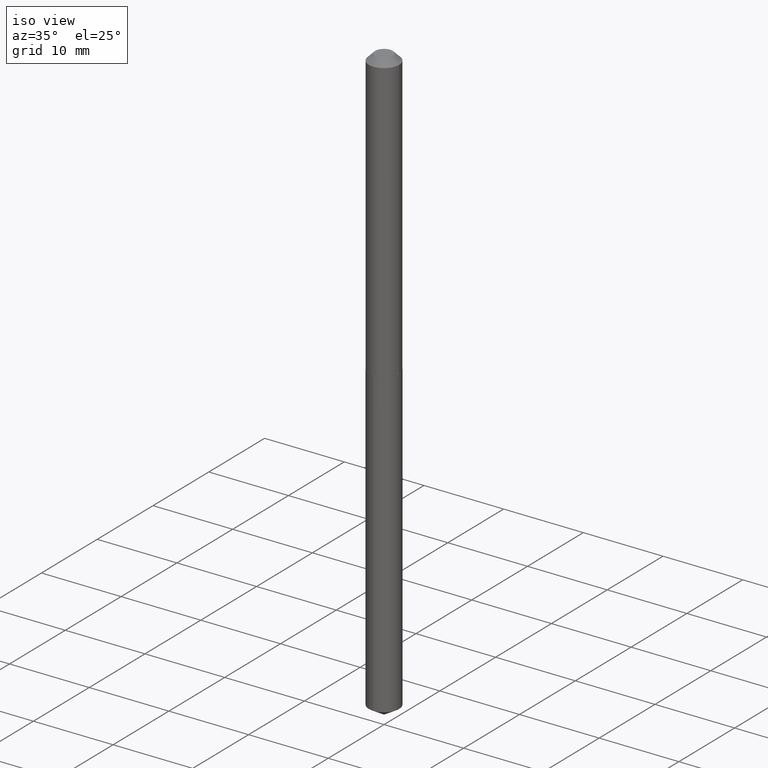
[diagram: clean part render]
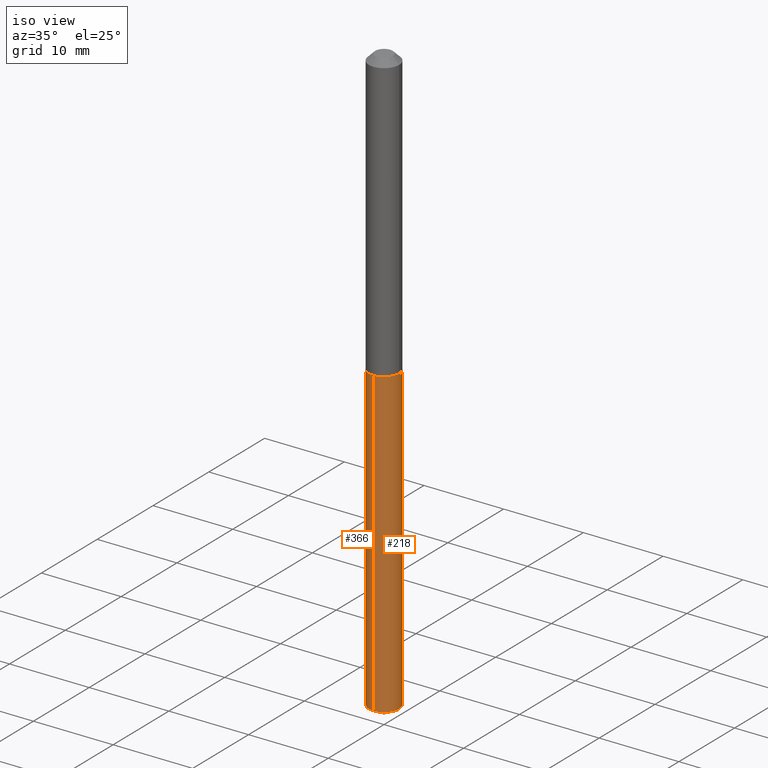
[diagram: same view with one multi-face feature highlighted, each face labeled with its STEP entity id]
A machine part, iso view. The highlighted faces form ONE feature: a constant-radius fillet chain: 2 tangent blend faces with common blend radius 1.8999 mm. The faces share edges in the B-rep.
Their STEP definitions:
[1] entity #218 (Cylinder):
#44 = ORIENTED_EDGE ( 'NONE', *, *, #364, .T. ) ;
#57 = DIRECTION ( 'NONE',  ( -6.982962677686265922E-15, -1.000000000000000000, 3.652203200085913145E-15 ) ) ;
#58 = EDGE_CURVE ( 'NONE', #380, #140, #114, .T. ) ;
#68 = VERTEX_POINT ( 'NONE', #264 ) ;
#80 = DIRECTION ( 'NONE',  ( -2.445501550165769556E-29, 3.491434447599207546E-15, 1.000000000000000000 ) ) ;
#86 = CYLINDRICAL_SURFACE ( 'NONE', #361, 0.07479999999999999150 ) ;
#92 = DIRECTION ( 'NONE',  ( -6.982962677686265922E-15, -1.000000000000000000, 0.000000000000000000 ) ) ;
#103 = AXIS2_PLACEMENT_3D ( 'NONE', #216, #178, #92 ) ;
#114 = LINE ( 'NONE', #202, #144 ) ;
#115 = CARTESIAN_POINT ( 'NONE',  ( -5.223256082908982878E-16, -0.07480000000000491811, -1.409499999999999309 ) ) ;
#132 = EDGE_CURVE ( 'NONE', #162, #140, #352, .T. ) ;
#136 = VECTOR ( 'NONE', #269, 39.37007874015748143 ) ;
#140 = VERTEX_POINT ( 'NONE', #204 ) ;
#144 = VECTOR ( 'NONE', #262, 39.37007874015748143 ) ;
#162 = VERTEX_POINT ( 'NONE', #115 ) ;
#175 = CARTESIAN_POINT ( 'NONE',  ( 3.446888282317949307E-29, -4.921242947099412620E-15, -1.409499999999999531 ) ) ;
#177 = EDGE_CURVE ( 'NONE', #68, #162, #245, .T. ) ;
#178 = DIRECTION ( 'NONE',  ( -2.445501550165769556E-29, 3.491434447599207546E-15, 1.000000000000000000 ) ) ;
#182 = DIRECTION ( 'NONE',  ( -2.445501550165769556E-29, 3.491434447599207546E-15, 1.000000000000000000 ) ) ;
#188 = CARTESIAN_POINT ( 'NONE',  ( 5.314859663486257775E-16, 0.07479999999998983296, -2.907855625696737611 ) ) ;
#197 = EDGE_LOOP ( 'NONE', ( #44, #371, #256, #360 ) ) ;
#202 = CARTESIAN_POINT ( 'NONE',  ( 5.314859663485892927E-16, 0.07479999999999507876, -1.409499999999999753 ) ) ;
#204 = CARTESIAN_POINT ( 'NONE',  ( 5.314859663486262705E-16, 0.07479999999999509264, -1.409499999999999753 ) ) ;
#216 = CARTESIAN_POINT ( 'NONE',  ( 7.111119287658923798E-29, -1.015265339341106768E-14, -2.907855625696737611 ) ) ;
#218 = ADVANCED_FACE ( 'NONE', ( #302 ), #86, .T. ) ;
#242 = CARTESIAN_POINT ( 'NONE',  ( -5.223256082908981892E-16, -0.07480000000000491811, -1.409499999999999309 ) ) ;
#245 = LINE ( 'NONE', #242, #136 ) ;
#256 = ORIENTED_EDGE ( 'NONE', *, *, #132, .F. ) ;
#262 = DIRECTION ( 'NONE',  ( -2.445501550165769556E-29, 3.491434447599207546E-15, 1.000000000000000000 ) ) ;
#264 = CARTESIAN_POINT ( 'NONE',  ( -5.223256082908615071E-16, -0.07480000000001012228, -2.907855625696737611 ) ) ;
#265 = AXIS2_PLACEMENT_3D ( 'NONE', #175, #80, #57 ) ;
#267 = DIRECTION ( 'NONE',  ( -6.982962677686265922E-15, -1.000000000000000000, 3.652203200085913934E-15 ) ) ;
#269 = DIRECTION ( 'NONE',  ( -2.445501550165769556E-29, 3.491434447599207546E-15, 1.000000000000000000 ) ) ;
#279 = CIRCLE ( 'NONE', #103, 0.07479999999999999150 ) ;
#302 = FACE_OUTER_BOUND ( 'NONE', #197, .T. ) ;
#328 = CARTESIAN_POINT ( 'NONE',  ( 3.446888282317949307E-29, -4.921242947099412620E-15, -1.409499999999999531 ) ) ;
#352 = CIRCLE ( 'NONE', #265, 0.07480000000000000537 ) ;
#360 = ORIENTED_EDGE ( 'NONE', *, *, #177, .F. ) ;
#361 = AXIS2_PLACEMENT_3D ( 'NONE', #328, #182, #267 ) ;
#364 = EDGE_CURVE ( 'NONE', #68, #380, #279, .T. ) ;
#371 = ORIENTED_EDGE ( 'NONE', *, *, #58, .T. ) ;
#380 = VERTEX_POINT ( 'NONE', #188 ) ;
[2] entity #366 (Cylinder):
#3 = DIRECTION ( 'NONE',  ( -2.445501550165769556E-29, 3.491434447599207546E-15, 1.000000000000000000 ) ) ;
#38 = DIRECTION ( 'NONE',  ( -2.445501550165769556E-29, 3.491434447599207546E-15, 1.000000000000000000 ) ) ;
#43 = DIRECTION ( 'NONE',  ( -6.982962677686265922E-15, -1.000000000000000000, 3.652203200085913934E-15 ) ) ;
#58 = EDGE_CURVE ( 'NONE', #380, #140, #114, .T. ) ;
#64 = CYLINDRICAL_SURFACE ( 'NONE', #217, 0.07479999999999999150 ) ;
#68 = VERTEX_POINT ( 'NONE', #264 ) ;
#104 = ORIENTED_EDGE ( 'NONE', *, *, #58, .F. ) ;
#114 = LINE ( 'NONE', #202, #144 ) ;
#115 = CARTESIAN_POINT ( 'NONE',  ( -5.223256082908982878E-16, -0.07480000000000491811, -1.409499999999999309 ) ) ;
#136 = VECTOR ( 'NONE', #269, 39.37007874015748143 ) ;
#140 = VERTEX_POINT ( 'NONE', #204 ) ;
#142 = AXIS2_PLACEMENT_3D ( 'NONE', #147, #181, #212 ) ;
#144 = VECTOR ( 'NONE', #262, 39.37007874015748143 ) ;
#147 = CARTESIAN_POINT ( 'NONE',  ( 3.446888282317949307E-29, -4.921242947099412620E-15, -1.409499999999999531 ) ) ;
#162 = VERTEX_POINT ( 'NONE', #115 ) ;
#177 = EDGE_CURVE ( 'NONE', #68, #162, #245, .T. ) ;
#181 = DIRECTION ( 'NONE',  ( -2.445501550165769556E-29, 3.491434447599207546E-15, 1.000000000000000000 ) ) ;
#185 = CIRCLE ( 'NONE', #273, 0.07479999999999999150 ) ;
#188 = CARTESIAN_POINT ( 'NONE',  ( 5.314859663486257775E-16, 0.07479999999998983296, -2.907855625696737611 ) ) ;
#202 = CARTESIAN_POINT ( 'NONE',  ( 5.314859663485892927E-16, 0.07479999999999507876, -1.409499999999999753 ) ) ;
#204 = CARTESIAN_POINT ( 'NONE',  ( 5.314859663486262705E-16, 0.07479999999999509264, -1.409499999999999753 ) ) ;
#212 = DIRECTION ( 'NONE',  ( -6.982962677686265922E-15, -1.000000000000000000, 3.652203200085913145E-15 ) ) ;
#213 = EDGE_CURVE ( 'NONE', #140, #162, #387, .T. ) ;
#217 = AXIS2_PLACEMENT_3D ( 'NONE', #334, #3, #43 ) ;
#242 = CARTESIAN_POINT ( 'NONE',  ( -5.223256082908981892E-16, -0.07480000000000491811, -1.409499999999999309 ) ) ;
#245 = LINE ( 'NONE', #242, #136 ) ;
#252 = EDGE_LOOP ( 'NONE', ( #104, #254, #315, #340 ) ) ;
#254 = ORIENTED_EDGE ( 'NONE', *, *, #309, .T. ) ;
#262 = DIRECTION ( 'NONE',  ( -2.445501550165769556E-29, 3.491434447599207546E-15, 1.000000000000000000 ) ) ;
#264 = CARTESIAN_POINT ( 'NONE',  ( -5.223256082908615071E-16, -0.07480000000001012228, -2.907855625696737611 ) ) ;
#269 = DIRECTION ( 'NONE',  ( -2.445501550165769556E-29, 3.491434447599207546E-15, 1.000000000000000000 ) ) ;
#273 = AXIS2_PLACEMENT_3D ( 'NONE', #329, #38, #365 ) ;
#309 = EDGE_CURVE ( 'NONE', #380, #68, #185, .T. ) ;
#315 = ORIENTED_EDGE ( 'NONE', *, *, #177, .T. ) ;
#329 = CARTESIAN_POINT ( 'NONE',  ( 7.111119287658923798E-29, -1.015265339341106768E-14, -2.907855625696737611 ) ) ;
#330 = FACE_OUTER_BOUND ( 'NONE', #252, .T. ) ;
#334 = CARTESIAN_POINT ( 'NONE',  ( 3.446888282317949307E-29, -4.921242947099412620E-15, -1.409499999999999531 ) ) ;
#340 = ORIENTED_EDGE ( 'NONE', *, *, #213, .F. ) ;
#365 = DIRECTION ( 'NONE',  ( -6.982962677686265922E-15, -1.000000000000000000, 0.000000000000000000 ) ) ;
#366 = ADVANCED_FACE ( 'NONE', ( #330 ), #64, .T. ) ;
#380 = VERTEX_POINT ( 'NONE', #188 ) ;
#387 = CIRCLE ( 'NONE', #142, 0.07480000000000000537 ) ;